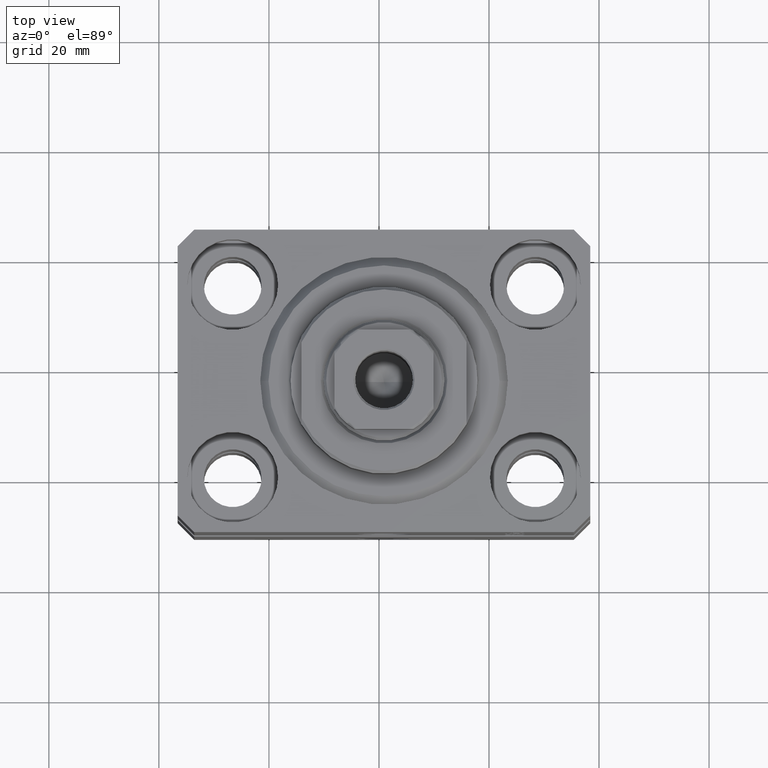
[diagram: clean part render]
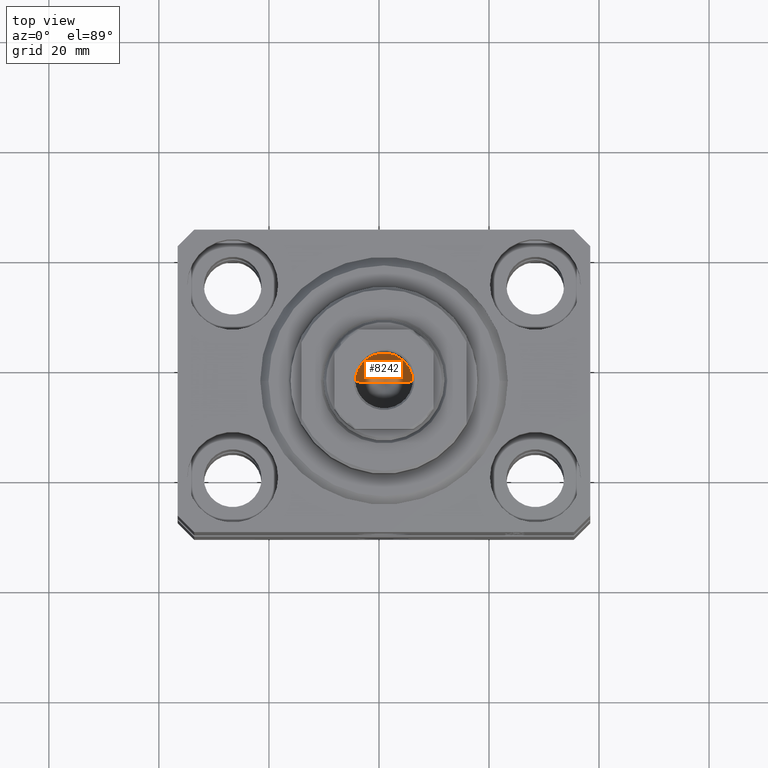
[diagram: same view with one face highlighted and labeled with its STEP entity id]
A machine part, top view. The second image highlights one B-rep face of the part: STEP entity #8242.
In plain terms, the highlighted conical surface has half-angle 59 deg.
Its self-contained STEP definition (entity closure, byte-faithful):
#731 = DIRECTION ( 'NONE',  ( 1.000000000000000000, 0.000000000000000000, 0.000000000000000000 ) ) ;
#4331 = VERTEX_POINT ( 'NONE', #39296 ) ;
#4352 = VECTOR ( 'NONE', #15178, 1000.000000000000000 ) ;
#4970 = CARTESIAN_POINT ( 'NONE',  ( 0.000000000000000000, 0.000000000000000000, 60.10000000000000853 ) ) ;
#5736 = AXIS2_PLACEMENT_3D ( 'NONE', #4970, #15364, #39269 ) ;
#7017 = AXIS2_PLACEMENT_3D ( 'NONE', #20796, #14052, #731 ) ;
#7959 = CARTESIAN_POINT ( 'NONE',  ( 5.249999999999994671, 0.000000000000000000, 60.10000000000000853 ) ) ;
#8242 = ADVANCED_FACE ( 'NONE', ( #19998 ), #40335, .F. ) ;
#10636 = VERTEX_POINT ( 'NONE', #41927 ) ;
#13608 = CARTESIAN_POINT ( 'NONE',  ( -5.249999999999994671, 6.429395695523597250E-16, 60.10000000000000853 ) ) ;
#14052 = DIRECTION ( 'NONE',  ( -0.000000000000000000, -0.000000000000000000, 1.000000000000000000 ) ) ;
#15178 = DIRECTION ( 'NONE',  ( 0.8571673007021118895, 0.000000000000000000, 0.5150380749100549327 ) ) ;
#15364 = DIRECTION ( 'NONE',  ( -0.000000000000000000, -0.000000000000000000, 1.000000000000000000 ) ) ;
#18258 = EDGE_LOOP ( 'NONE', ( #22546, #34440, #27533 ) ) ;
#19998 = FACE_OUTER_BOUND ( 'NONE', #18258, .T. ) ;
#20796 = CARTESIAN_POINT ( 'NONE',  ( 0.000000000000000000, 0.000000000000000000, 60.10000000000000853 ) ) ;
#21038 = LINE ( 'NONE', #13608, #28374 ) ;
#22546 = ORIENTED_EDGE ( 'NONE', *, *, #44195, .F. ) ;
#25543 = LINE ( 'NONE', #7959, #4352 ) ;
#27370 = CARTESIAN_POINT ( 'NONE',  ( 5.249999999999994671, 0.000000000000000000, 60.10000000000000853 ) ) ;
#27533 = ORIENTED_EDGE ( 'NONE', *, *, #31778, .T. ) ;
#28374 = VECTOR ( 'NONE', #34825, 1000.000000000000000 ) ;
#31778 = EDGE_CURVE ( 'NONE', #44082, #4331, #35123, .T. ) ;
#34440 = ORIENTED_EDGE ( 'NONE', *, *, #37307, .T. ) ;
#34825 = DIRECTION ( 'NONE',  ( -0.8571673007021118895, 1.049727191138618079E-16, 0.5150380749100549327 ) ) ;
#35123 = CIRCLE ( 'NONE', #7017, 5.249999999999994671 ) ;
#37307 = EDGE_CURVE ( 'NONE', #10636, #44082, #25543, .T. ) ;
#39269 = DIRECTION ( 'NONE',  ( 1.000000000000000000, 0.000000000000000000, 0.000000000000000000 ) ) ;
#39296 = CARTESIAN_POINT ( 'NONE',  ( -5.249999999999994671, 6.429395695523597250E-16, 60.10000000000000853 ) ) ;
#40335 = CONICAL_SURFACE ( 'NONE', #5736, 5.249999999999994671, 1.029744258676653645 ) ;
#41927 = CARTESIAN_POINT ( 'NONE',  ( -6.783656367213677939E-15, 0.000000000000000000, 56.94548175010531565 ) ) ;
#44082 = VERTEX_POINT ( 'NONE', #27370 ) ;
#44195 = EDGE_CURVE ( 'NONE', #10636, #4331, #21038, .T. ) ;